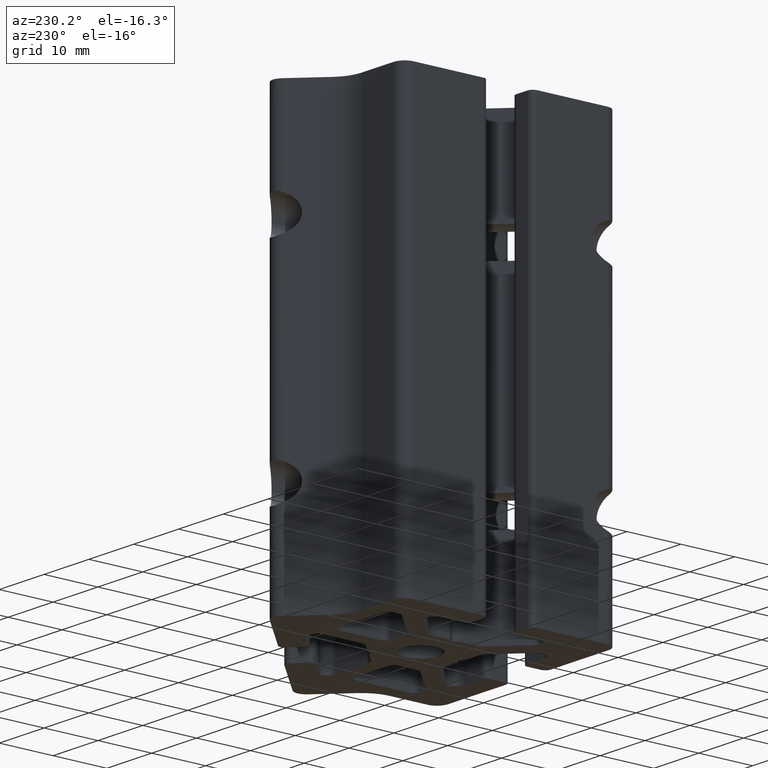
[diagram: clean part render]
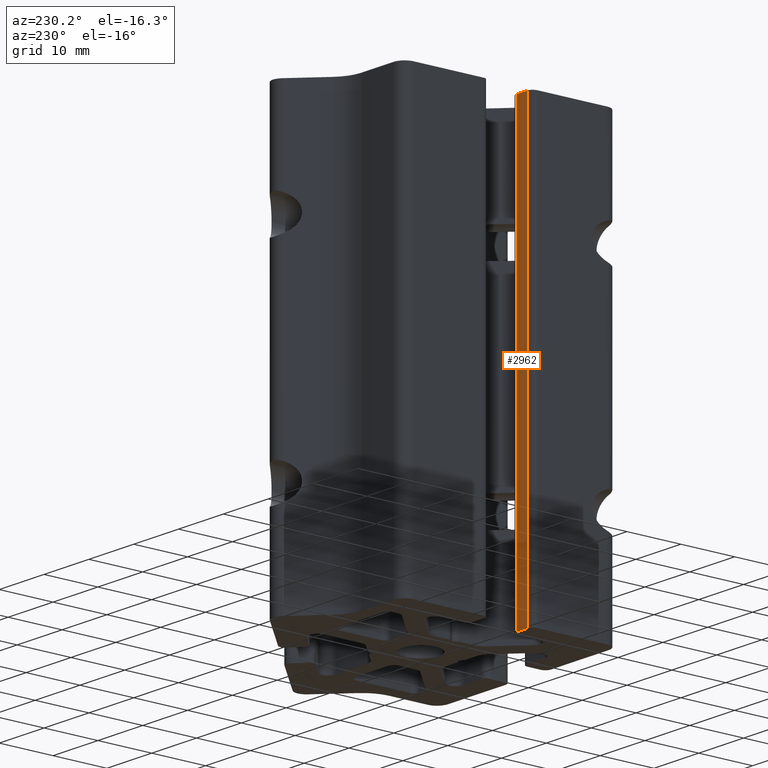
[diagram: same view with one face highlighted and labeled with its STEP entity id]
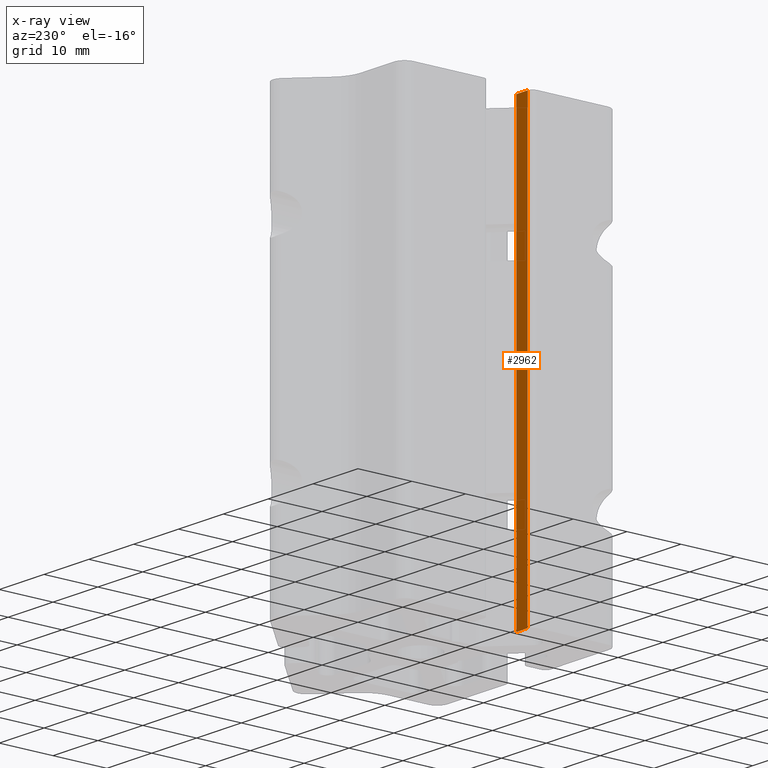
[diagram: x-ray of the same camera — body ghosted, the highlighted face saturated]
A machine part, auxiliary view. The second image highlights one B-rep face of the part: STEP entity #2962.
The next image is the same camera in x-ray: the body ghosted, the highlighted face saturated — about 0% of this face is hidden behind the body in this view.
In plain terms, the highlighted planar face has unit normal (0, -1, 0).
Its self-contained STEP definition (entity closure, byte-faithful):
#2905=CARTESIAN_POINT('',(-16.499969636939568,-3.999999111983925,0.0));
#2906=VERTEX_POINT('',#2905);
#2914=CARTESIAN_POINT('',(-16.499969636939568,-3.999999111983925,79.999715220555601));
#2915=VERTEX_POINT('',#2914);
#2916=CARTESIAN_POINT('',(-16.499969636939568,-3.999999111983925,79.999715220555601));
#2917=DIRECTION('',(0.0,0.0,-1.0));
#2918=VECTOR('',#2917,79.999715220555601);
#2919=LINE('',#2916,#2918);
#2920=EDGE_CURVE('',#2915,#2906,#2919,.T.);
#2932=CARTESIAN_POINT('',(-16.499969636939568,-3.999999111983925,79.999715220555601));
#2933=DIRECTION('',(0.0,-1.0,0.0));
#2934=DIRECTION('',(-1.0,0.0,0.0));
#2935=AXIS2_PLACEMENT_3D('',#2932,#2933,#2934);
#2936=PLANE('',#2935);
#2937=ORIENTED_EDGE('',*,*,#2920,.T.);
#2938=CARTESIAN_POINT('',(-18.999969081929976,-3.999999111983925,0.0));
#2939=VERTEX_POINT('',#2938);
#2940=CARTESIAN_POINT('',(-16.499969636939568,-3.999999111983925,0.0));
#2941=DIRECTION('',(-1.0,0.0,0.0));
#2942=VECTOR('',#2941,2.499999444990408);
#2943=LINE('',#2940,#2942);
#2944=EDGE_CURVE('',#2906,#2939,#2943,.T.);
#2945=ORIENTED_EDGE('',*,*,#2944,.T.);
#2946=CARTESIAN_POINT('',(-18.999969081929976,-3.999999111983925,79.999715220555601));
#2947=VERTEX_POINT('',#2946);
#2948=CARTESIAN_POINT('',(-18.999969081929976,-3.999999111983925,79.999715220555601));
#2949=DIRECTION('',(0.0,0.0,-1.0));
#2950=VECTOR('',#2949,79.999715220555601);
#2951=LINE('',#2948,#2950);
#2952=EDGE_CURVE('',#2947,#2939,#2951,.T.);
#2953=ORIENTED_EDGE('',*,*,#2952,.F.);
#2954=CARTESIAN_POINT('',(-16.499969636939568,-3.999999111983925,79.999715220555601));
#2955=DIRECTION('',(-1.0,0.0,0.0));
#2956=VECTOR('',#2955,2.499999444990408);
#2957=LINE('',#2954,#2956);
#2958=EDGE_CURVE('',#2915,#2947,#2957,.T.);
#2959=ORIENTED_EDGE('',*,*,#2958,.F.);
#2960=EDGE_LOOP('',(#2937,#2945,#2953,#2959));
#2961=FACE_OUTER_BOUND('',#2960,.T.);
#2962=ADVANCED_FACE('',(#2961),#2936,.F.);